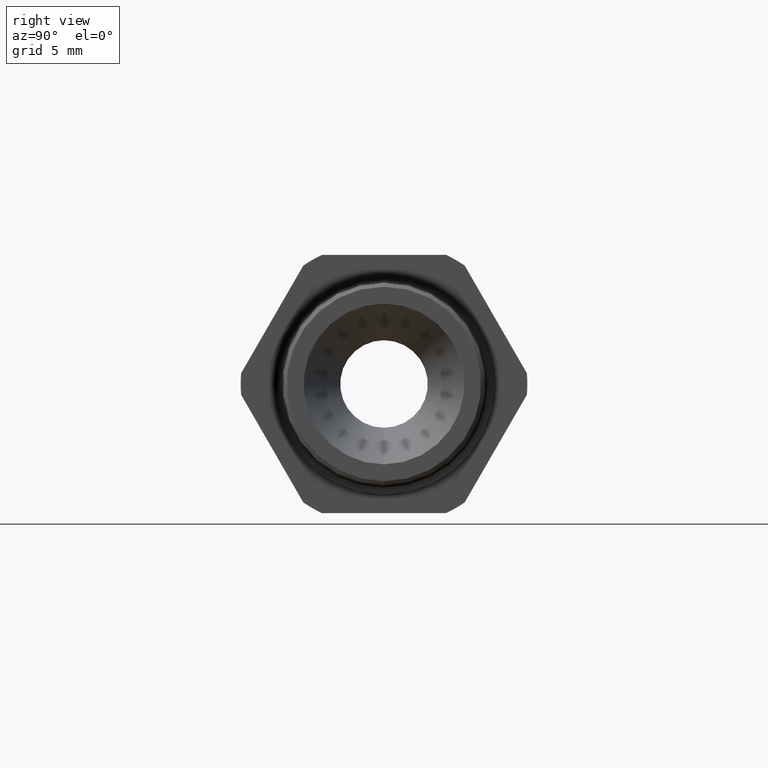
[diagram: clean part render]
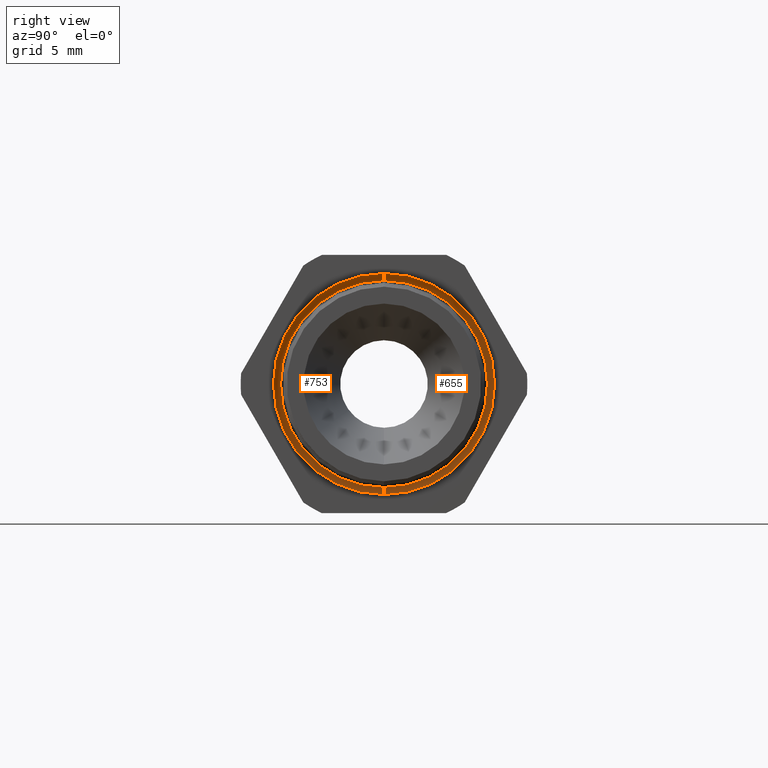
[diagram: same view with one multi-face feature highlighted, each face labeled with its STEP entity id]
A machine part, right view. The highlighted faces form ONE feature: a constant-radius fillet chain: 2 tangent blend faces with common blend radius 0.508 mm. The faces share edges in the B-rep.
Their STEP definitions:
[1] entity #753 (Torus):
#753 = ADVANCED_FACE ( 'NONE', ( #2518 ), #2517, .F. ) ;
#754 = EDGE_LOOP ( 'NONE', ( #755, #811, #814, #821 ) ) ;
#755 = ORIENTED_EDGE ( 'NONE', *, *, #760, .F. ) ;
#760 = EDGE_CURVE ( 'NONE', #801, #780, #2506, .T. ) ;
#780 = VERTEX_POINT ( 'NONE', #2530 ) ;
#801 = VERTEX_POINT ( 'NONE', #2555 ) ;
#811 = ORIENTED_EDGE ( 'NONE', *, *, #812, .T. ) ;
#812 = EDGE_CURVE ( 'NONE', #801, #813, #2597, .T. ) ;
#813 = VERTEX_POINT ( 'NONE', #2592 ) ;
#814 = ORIENTED_EDGE ( 'NONE', *, *, #815, .F. ) ;
#815 = EDGE_CURVE ( 'NONE', #820, #813, #2591, .T. ) ;
#820 = VERTEX_POINT ( 'NONE', #2640 ) ;
#821 = ORIENTED_EDGE ( 'NONE', *, *, #822, .F. ) ;
#822 = EDGE_CURVE ( 'NONE', #780, #820, #2638, .T. ) ;
#2502 = DIRECTION ( 'NONE',  ( 0.0000000000000000000, 0.0000000000000000000, -1.000000000000000000 ) ) ;
#2503 = DIRECTION ( 'NONE',  ( 1.000000000000000000, 0.0000000000000000000, 0.0000000000000000000 ) ) ;
#2504 = CARTESIAN_POINT ( 'NONE',  ( -0.3089999999999998300, 0.0000000000000000000, 0.0000000000000000000 ) ) ;
#2505 = AXIS2_PLACEMENT_3D ( 'NONE', #2504, #2503, #2502 ) ;
#2506 = CIRCLE ( 'NONE', #2505, 0.2126988702144515800 ) ;
#2513 = DIRECTION ( 'NONE',  ( 0.0000000000000000000, 0.0000000000000000000, -1.000000000000000000 ) ) ;
#2514 = DIRECTION ( 'NONE',  ( 1.000000000000000000, 0.0000000000000000000, 0.0000000000000000000 ) ) ;
#2515 = CARTESIAN_POINT ( 'NONE',  ( -0.3089999999999998300, 0.0000000000000000000, 0.0000000000000000000 ) ) ;
#2516 = AXIS2_PLACEMENT_3D ( 'NONE', #2515, #2514, #2513 ) ;
#2517 = TOROIDAL_SURFACE ( 'NONE', #2516, 0.2326988702144515700, 0.02000000000000000700 ) ;
#2518 = FACE_OUTER_BOUND ( 'NONE', #754, .T. ) ;
#2530 = CARTESIAN_POINT ( 'NONE',  ( -0.3089999999999998300, 0.0000000000000000000, -0.2126988702144515800 ) ) ;
#2555 = CARTESIAN_POINT ( 'NONE',  ( -0.3089999999999998300, 2.604809905903863800E-017, 0.2126988702144515800 ) ) ;
#2587 = DIRECTION ( 'NONE',  ( 0.0000000000000000000, 0.0000000000000000000, -1.000000000000000000 ) ) ;
#2588 = DIRECTION ( 'NONE',  ( -1.000000000000000000, 0.0000000000000000000, 0.0000000000000000000 ) ) ;
#2589 = CARTESIAN_POINT ( 'NONE',  ( -0.3100000000000000000, 0.0000000000000000000, 0.0000000000000000000 ) ) ;
#2590 = AXIS2_PLACEMENT_3D ( 'NONE', #2589, #2588, #2587 ) ;
#2591 = CIRCLE ( 'NONE', #2590, 0.2526738545698897200 ) ;
#2592 = CARTESIAN_POINT ( 'NONE',  ( -0.3100000000000000000, 3.094362272272392900E-017, 0.2526738545698897200 ) ) ;
#2593 = DIRECTION ( 'NONE',  ( 0.0000000000000000000, 1.224646799147354900E-016, 1.000000000000000000 ) ) ;
#2594 = DIRECTION ( 'NONE',  ( 0.0000000000000000000, 1.000000000000000000, -1.224646799147353200E-016 ) ) ;
#2595 = CARTESIAN_POINT ( 'NONE',  ( -0.3089999999999998300, 2.849739265733334800E-017, 0.2326988702144515700 ) ) ;
#2596 = AXIS2_PLACEMENT_3D ( 'NONE', #2595, #2594, #2593 ) ;
#2597 = CIRCLE ( 'NONE', #2596, 0.01999999999999999000 ) ;
#2634 = DIRECTION ( 'NONE',  ( 0.0000000000000000000, 0.0000000000000000000, -1.000000000000000000 ) ) ;
#2635 = DIRECTION ( 'NONE',  ( 0.0000000000000000000, -1.000000000000000000, 0.0000000000000000000 ) ) ;
#2636 = CARTESIAN_POINT ( 'NONE',  ( -0.3089999999999998300, 0.0000000000000000000, -0.2326988702144515700 ) ) ;
#2637 = AXIS2_PLACEMENT_3D ( 'NONE', #2636, #2635, #2634 ) ;
#2638 = CIRCLE ( 'NONE', #2637, 0.01999999999999999000 ) ;
#2640 = CARTESIAN_POINT ( 'NONE',  ( -0.3100000000000000000, 0.0000000000000000000, -0.2526738545698897200 ) ) ;
[2] entity #655 (Torus):
#125 = EDGE_CURVE ( 'NONE', #813, #820, #1462, .T. ) ;
#655 = ADVANCED_FACE ( 'NONE', ( #2296 ), #2291, .F. ) ;
#656 = EDGE_LOOP ( 'NONE', ( #707, #708, #709, #710 ) ) ;
#707 = ORIENTED_EDGE ( 'NONE', *, *, #810, .F. ) ;
#708 = ORIENTED_EDGE ( 'NONE', *, *, #822, .T. ) ;
#709 = ORIENTED_EDGE ( 'NONE', *, *, #125, .F. ) ;
#710 = ORIENTED_EDGE ( 'NONE', *, *, #812, .F. ) ;
#780 = VERTEX_POINT ( 'NONE', #2530 ) ;
#801 = VERTEX_POINT ( 'NONE', #2555 ) ;
#810 = EDGE_CURVE ( 'NONE', #780, #801, #2602, .T. ) ;
#812 = EDGE_CURVE ( 'NONE', #801, #813, #2597, .T. ) ;
#813 = VERTEX_POINT ( 'NONE', #2592 ) ;
#820 = VERTEX_POINT ( 'NONE', #2640 ) ;
#822 = EDGE_CURVE ( 'NONE', #780, #820, #2638, .T. ) ;
#1458 = DIRECTION ( 'NONE',  ( 0.0000000000000000000, 0.0000000000000000000, -1.000000000000000000 ) ) ;
#1459 = DIRECTION ( 'NONE',  ( -1.000000000000000000, 0.0000000000000000000, 0.0000000000000000000 ) ) ;
#1460 = CARTESIAN_POINT ( 'NONE',  ( -0.3100000000000000000, 0.0000000000000000000, 0.0000000000000000000 ) ) ;
#1461 = AXIS2_PLACEMENT_3D ( 'NONE', #1460, #1459, #1458 ) ;
#1462 = CIRCLE ( 'NONE', #1461, 0.2526738545698897200 ) ;
#2289 = CARTESIAN_POINT ( 'NONE',  ( -0.3089999999999998300, 0.0000000000000000000, 0.0000000000000000000 ) ) ;
#2290 = AXIS2_PLACEMENT_3D ( 'NONE', #2289, #2352, #2351 ) ;
#2291 = TOROIDAL_SURFACE ( 'NONE', #2290, 0.2326988702144515700, 0.02000000000000000700 ) ;
#2296 = FACE_OUTER_BOUND ( 'NONE', #656, .T. ) ;
#2351 = DIRECTION ( 'NONE',  ( 0.0000000000000000000, 0.0000000000000000000, -1.000000000000000000 ) ) ;
#2352 = DIRECTION ( 'NONE',  ( 1.000000000000000000, 0.0000000000000000000, 0.0000000000000000000 ) ) ;
#2530 = CARTESIAN_POINT ( 'NONE',  ( -0.3089999999999998300, 0.0000000000000000000, -0.2126988702144515800 ) ) ;
#2555 = CARTESIAN_POINT ( 'NONE',  ( -0.3089999999999998300, 2.604809905903863800E-017, 0.2126988702144515800 ) ) ;
#2592 = CARTESIAN_POINT ( 'NONE',  ( -0.3100000000000000000, 3.094362272272392900E-017, 0.2526738545698897200 ) ) ;
#2593 = DIRECTION ( 'NONE',  ( 0.0000000000000000000, 1.224646799147354900E-016, 1.000000000000000000 ) ) ;
#2594 = DIRECTION ( 'NONE',  ( 0.0000000000000000000, 1.000000000000000000, -1.224646799147353200E-016 ) ) ;
#2595 = CARTESIAN_POINT ( 'NONE',  ( -0.3089999999999998300, 2.849739265733334800E-017, 0.2326988702144515700 ) ) ;
#2596 = AXIS2_PLACEMENT_3D ( 'NONE', #2595, #2594, #2593 ) ;
#2597 = CIRCLE ( 'NONE', #2596, 0.01999999999999999000 ) ;
#2598 = DIRECTION ( 'NONE',  ( 0.0000000000000000000, 0.0000000000000000000, -1.000000000000000000 ) ) ;
#2599 = DIRECTION ( 'NONE',  ( 1.000000000000000000, 0.0000000000000000000, 0.0000000000000000000 ) ) ;
#2600 = CARTESIAN_POINT ( 'NONE',  ( -0.3089999999999998300, 0.0000000000000000000, 0.0000000000000000000 ) ) ;
#2601 = AXIS2_PLACEMENT_3D ( 'NONE', #2600, #2599, #2598 ) ;
#2602 = CIRCLE ( 'NONE', #2601, 0.2126988702144515800 ) ;
#2634 = DIRECTION ( 'NONE',  ( 0.0000000000000000000, 0.0000000000000000000, -1.000000000000000000 ) ) ;
#2635 = DIRECTION ( 'NONE',  ( 0.0000000000000000000, -1.000000000000000000, 0.0000000000000000000 ) ) ;
#2636 = CARTESIAN_POINT ( 'NONE',  ( -0.3089999999999998300, 0.0000000000000000000, -0.2326988702144515700 ) ) ;
#2637 = AXIS2_PLACEMENT_3D ( 'NONE', #2636, #2635, #2634 ) ;
#2638 = CIRCLE ( 'NONE', #2637, 0.01999999999999999000 ) ;
#2640 = CARTESIAN_POINT ( 'NONE',  ( -0.3100000000000000000, 0.0000000000000000000, -0.2526738545698897200 ) ) ;